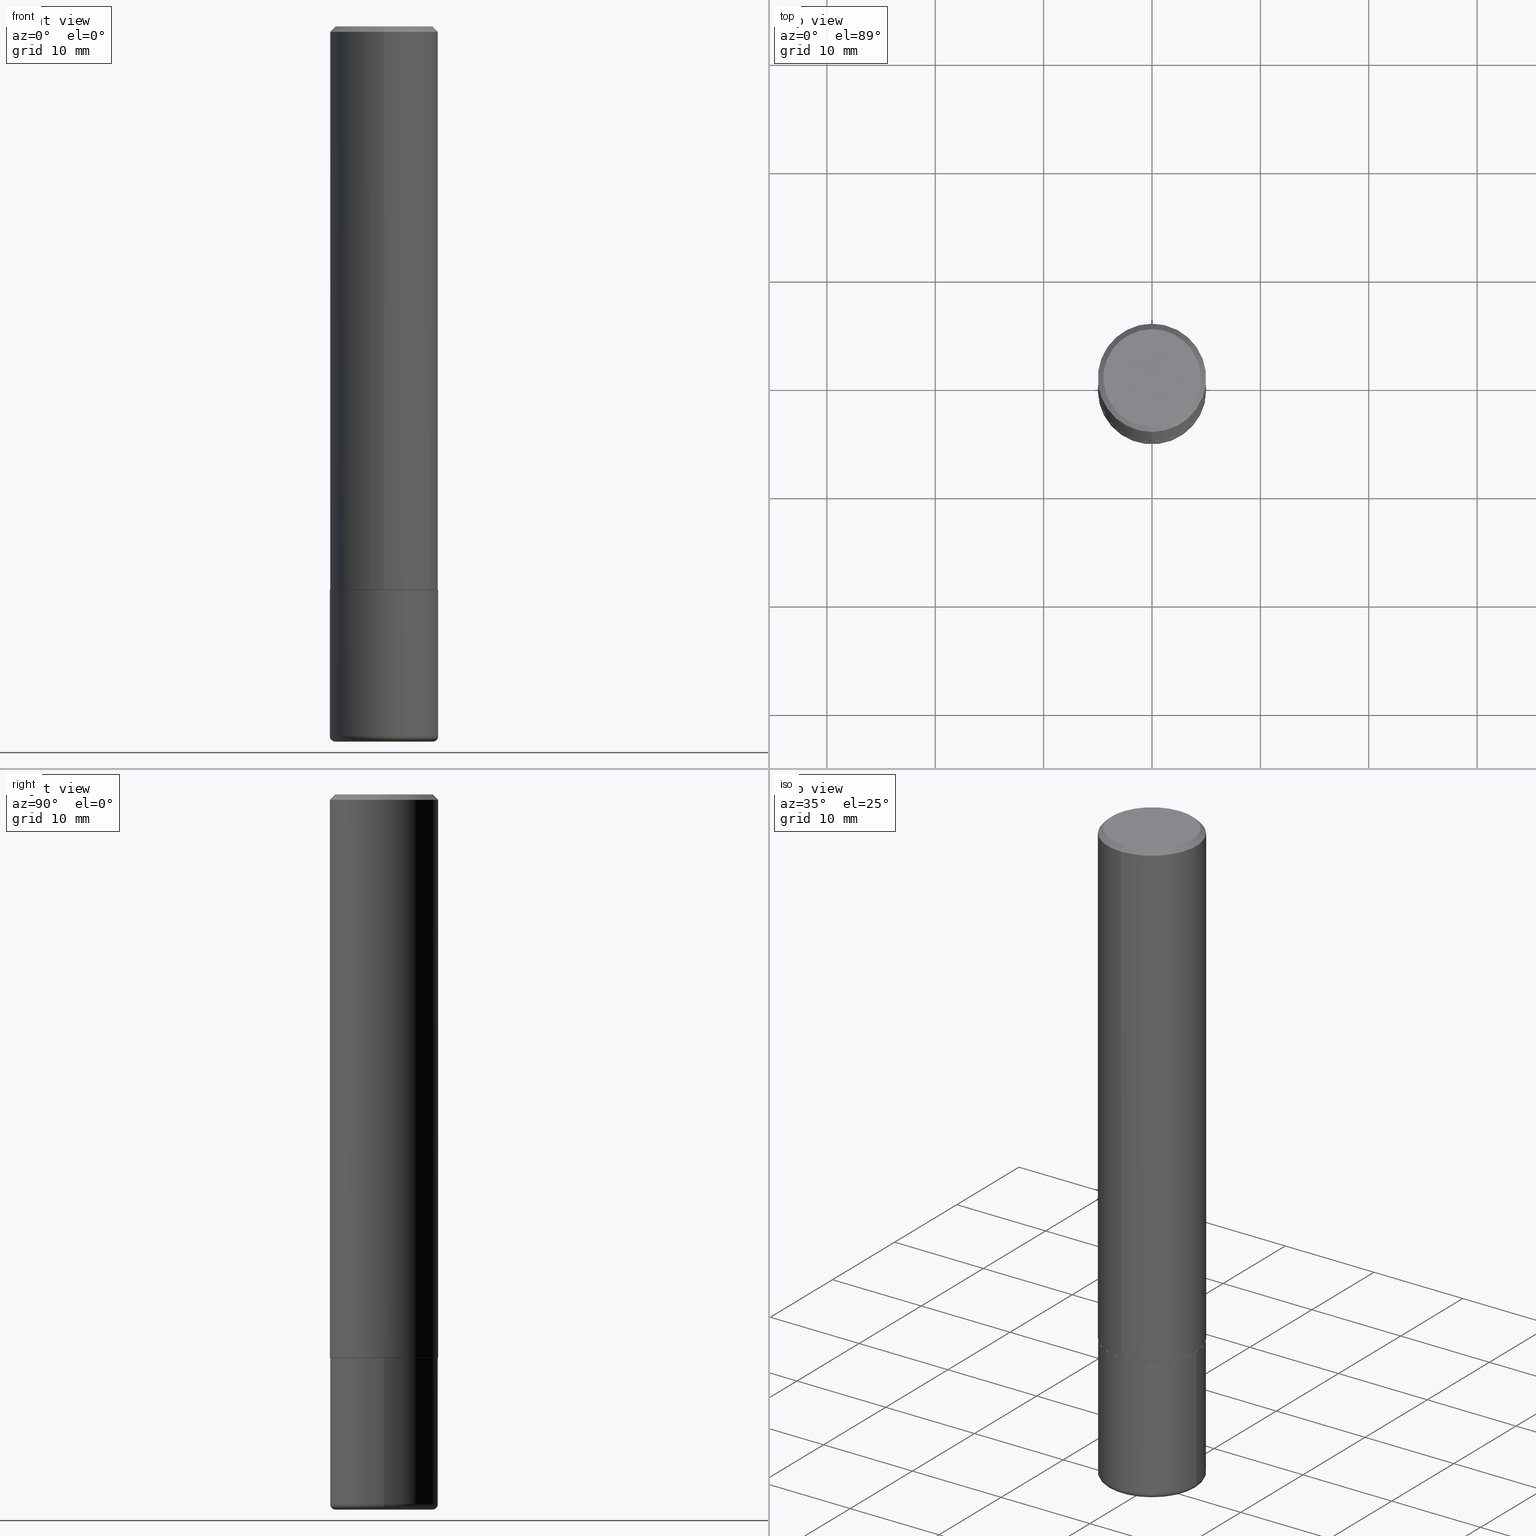
[diagram: canonical four-view strip — front | top / right | iso, engineering-drawing reading convention]
A machine part, canonical four-view strip (front | top / right | iso — engineering-drawing reading convention). The complete STEP part file that produces these views, byte-faithful:
ISO-10303-21;
HEADER;
FILE_DESCRIPTION (( 'STEP AP203' ),
    '1' );
FILE_NAME ('42714.STEP',
    '2024-03-04T03:27:57',
    ( '' ),
    ( '' ),
    'SwSTEP 2.0',
    'SolidWorks 2023',
    '' );
FILE_SCHEMA (( 'CONFIG_CONTROL_DESIGN' ));
ENDSEC;

DATA;
#1 = CIRCLE ( 'NONE', #151, 0.1768499999999999239 ) ;
#2 = EDGE_CURVE ( 'NONE', #179, #27, #392, .T. ) ;
#3 = ADVANCED_FACE ( 'NONE', ( #62 ), #130, .F. ) ;
#4 = LINE ( 'NONE', #164, #75 ) ;
#5 = DIRECTION ( 'NONE',  ( -2.446014387336122996E-29, 3.490700035582381786E-15, 1.000000000000000000 ) ) ;
#6 = CARTESIAN_POINT ( 'NONE',  ( 0.000000000000000000, 0.000000000000000000, 0.000000000000000000 ) ) ;
#7 = CARTESIAN_POINT ( 'NONE',  ( 6.306130410509613019E-29, -9.003482928474821437E-15, -2.578700000000000436 ) ) ;
#8 = ORIENTED_EDGE ( 'NONE', *, *, #223, .F. ) ;
#9 = DATE_AND_TIME ( #342, #266 ) ;
#10 = DIRECTION ( 'NONE',  ( -2.445468806185136597E-29, 3.491481338843145583E-15, 1.000000000000000000 ) ) ;
#11 = CARTESIAN_POINT ( 'NONE',  ( 0.1968499999999999417, -1.037807913157736305E-14, -2.578700000000000436 ) ) ;
#12 = DIRECTION ( 'NONE',  ( 0.000000000000000000, 0.000000000000000000, 1.000000000000000000 ) ) ;
#13 = SECURITY_CLASSIFICATION_LEVEL ( 'unclassified' ) ;
#14 = CYLINDRICAL_SURFACE ( 'NONE', #321, 0.1968499999999999694 ) ;
#15 = TOROIDAL_SURFACE ( 'NONE', #407, 0.1771500000000000019, 0.01969999999999987733 ) ;
#16 = DIRECTION ( 'NONE',  ( 6.982962677686265922E-15, 1.000000000000000000, -3.490700035582381786E-15 ) ) ;
#17 = CARTESIAN_POINT ( 'NONE',  ( 5.007480653754512257E-29, -7.146161112844253713E-15, -2.047200000000000131 ) ) ;
#18 = ORIENTED_EDGE ( 'NONE', *, *, #336, .F. ) ;
#19 = FACE_OUTER_BOUND ( 'NONE', #94, .T. ) ;
#20 = EDGE_CURVE ( 'NONE', #96, #416, #57, .T. ) ;
#21 = APPLICATION_CONTEXT ( 'configuration controlled 3d designs of mechanical parts and assemblies' ) ;
#22 = LOCAL_TIME ( 22, 27, 57.00000000000000000, #381 ) ;
#23 = VERTEX_POINT ( 'NONE', #310 ) ;
#24 = CARTESIAN_POINT ( 'NONE',  ( 6.306130410509613019E-29, -9.003482928474821437E-15, -2.578700000000000436 ) ) ;
#25 = CARTESIAN_POINT ( 'NONE',  ( 0.000000000000000000, 0.000000000000000000, 0.000000000000000000 ) ) ;
#26 = DIRECTION ( 'NONE',  ( 2.438088387897960049E-29, -3.491481338843145188E-15, -1.000000000000000000 ) ) ;
#27 = VERTEX_POINT ( 'NONE', #276 ) ;
#28 = DIRECTION ( 'NONE',  ( 4.937700262164541731E-15, 0.7071067811865442421, -0.7071067811865507924 ) ) ;
#29 = ORIENTED_EDGE ( 'NONE', *, *, #54, .T. ) ;
#30 = VERTEX_POINT ( 'NONE', #368 ) ;
#31 = CONICAL_SURFACE ( 'NONE', #189, 0.1968500000000000250, 0.7853981633974471688 ) ;
#32 = VECTOR ( 'NONE', #183, 39.37007874015748143 ) ;
#33 = CARTESIAN_POINT ( 'NONE',  ( -1.367613240424805107E-15, -0.1958500000000071573, -2.047199999999999243 ) ) ;
#34 = ORIENTED_EDGE ( 'NONE', *, *, #279, .F. ) ;
#35 = PRODUCT_DEFINITION_SHAPE ( 'NONE', 'NONE',  #257 ) ;
#36 = ORIENTED_EDGE ( 'NONE', *, *, #223, .T. ) ;
#37 = ORIENTED_EDGE ( 'NONE', *, *, #2, .T. ) ;
#38 = PERSON_AND_ORGANIZATION ( #135, #46 ) ;
#39 = ORIENTED_EDGE ( 'NONE', *, *, #304, .T. ) ;
#40 = CIRCLE ( 'NONE', #162, 0.01969999999999989468 ) ;
#41 = AXIS2_PLACEMENT_3D ( 'NONE', #6, #12, #93 ) ;
#42 = CC_DESIGN_PERSON_AND_ORGANIZATION_ASSIGNMENT ( #218, #149, ( #257 ) ) ;
#43 = CARTESIAN_POINT ( 'NONE',  ( 4.892028774672256712E-31, -6.981400071164778067E-17, -0.02000000000000004205 ) ) ;
#44 = DIRECTION ( 'NONE',  ( -6.982962677686265922E-15, -1.000000000000000000, 4.163344669033670112E-15 ) ) ;
#45 = APPLICATION_PROTOCOL_DEFINITION ( 'international standard', 'config_control_design', 1994, #52 ) ;
#46 = ORGANIZATION ( 'UNSPECIFIED', 'UNSPECIFIED', '' ) ;
#47 = VERTEX_POINT ( 'NONE', #175 ) ;
#48 = EDGE_LOOP ( 'NONE', ( #114, #37 ) ) ;
#49 = CLOSED_SHELL ( 'NONE', ( #200, #355, #352, #255, #210, #73 ) ) ;
#50 = AXIS2_PLACEMENT_3D ( 'NONE', #387, #97, #361 ) ;
#51 = FACE_OUTER_BOUND ( 'NONE', #48, .T. ) ;
#52 = APPLICATION_CONTEXT ( 'configuration controlled 3d designs of mechanical parts and assemblies' ) ;
#53 = EDGE_CURVE ( 'NONE', #115, #253, #280, .T. ) ;
#54 = EDGE_CURVE ( 'NONE', #416, #30, #265, .T. ) ;
#55 = APPROVAL ( #103, 'UNSPECIFIED' ) ;
#56 = DIRECTION ( 'NONE',  ( -1.000000000000000000, 6.982962677686265922E-15, -4.876176775795935793E-29 ) ) ;
#57 = CIRCLE ( 'NONE', #240, 0.01969999999999989468 ) ;
#58 = AXIS2_PLACEMENT_3D ( 'NONE', #345, #187, #16 ) ;
#59 = CC_DESIGN_APPROVAL ( #55, ( #163 ) ) ;
#60 = DIRECTION ( 'NONE',  ( -2.445468806185136597E-29, 3.491481338843145583E-15, 1.000000000000000000 ) ) ;
#61 = EDGE_LOOP ( 'NONE', ( #378, #360, #127, #247 ) ) ;
#62 = FACE_OUTER_BOUND ( 'NONE', #408, .T. ) ;
#63 = CARTESIAN_POINT ( 'NONE',  ( 1.374596203102542003E-15, 0.1968499999999999417, -0.02000000000000072900 ) ) ;
#64 = ORIENTED_EDGE ( 'NONE', *, *, #336, .T. ) ;
#65 = EDGE_CURVE ( 'NONE', #314, #217, #379, .T. ) ;
#66 = CARTESIAN_POINT ( 'NONE',  ( -2.502422567953256379E-45, 3.571199986484879937E-31, 1.023061262807437951E-16 ) ) ;
#67 = APPLICATION_PROTOCOL_DEFINITION ( 'international standard', 'config_control_design', 1994, #21 ) ;
#68 = ORIENTED_EDGE ( 'NONE', *, *, #72, .F. ) ;
#69 = VECTOR ( 'NONE', #414, 39.37007874015748143 ) ;
#70 = VECTOR ( 'NONE', #155, 39.37007874015748143 ) ;
#71 = ORIENTED_EDGE ( 'NONE', *, *, #53, .T. ) ;
#72 = EDGE_CURVE ( 'NONE', #217, #299, #100, .T. ) ;
#73 = ADVANCED_FACE ( 'NONE', ( #354 ), #225, .T. ) ;
#74 = DIRECTION ( 'NONE',  ( -2.446014387336123276E-29, 3.490700035582381786E-15, 1.000000000000000000 ) ) ;
#75 = VECTOR ( 'NONE', #331, 39.37007874015748143 ) ;
#76 = EDGE_CURVE ( 'NONE', #30, #179, #353, .T. ) ;
#77 = AXIS2_PLACEMENT_3D ( 'NONE', #248, #128, #395 ) ;
#78 = PERSON_AND_ORGANIZATION ( #135, #46 ) ;
#79 = ADVANCED_FACE ( 'NONE', ( #19 ), #31, .T. ) ;
#80 = DIRECTION ( 'NONE',  ( -6.982962677686265922E-15, -1.000000000000000000, 4.184602492209747448E-15 ) ) ;
#81 = DIRECTION ( 'NONE',  ( -2.446014387336123276E-29, 3.490700035582381786E-15, 1.000000000000000000 ) ) ;
#82 = LOCAL_TIME ( 22, 27, 57.00000000000000000, #312 ) ;
#83 = DATE_AND_TIME ( #134, #343 ) ;
#84 = APPROVAL ( #258, 'UNSPECIFIED' ) ;
#85 = CARTESIAN_POINT ( 'NONE',  ( -0.1968499999999999694, 1.398703375343756999E-15, -9.682923725166782276E-30 ) ) ;
#86 = DATE_AND_TIME ( #287, #22 ) ;
#87 = AXIS2_PLACEMENT_3D ( 'NONE', #320, #26, #56 ) ;
#88 = LINE ( 'NONE', #348, #70 ) ;
#89 = COORDINATED_UNIVERSAL_TIME_OFFSET ( 5, 0, .BEHIND. ) ;
#90 = EDGE_CURVE ( 'NONE', #388, #253, #271, .T. ) ;
#91 = DIRECTION ( 'NONE',  ( -4.851104656540957964E-15, -0.7071067811865491270, -0.7071067811865459074 ) ) ;
#92 = ORIENTED_EDGE ( 'NONE', *, *, #195, .F. ) ;
#93 = DIRECTION ( 'NONE',  ( 1.000000000000000000, 0.000000000000000000, 0.000000000000000000 ) ) ;
#94 = EDGE_LOOP ( 'NONE', ( #231, #333, #308, #168 ) ) ;
#95 = CC_DESIGN_SECURITY_CLASSIFICATION ( #272, ( #163 ) ) ;
#96 = VERTEX_POINT ( 'NONE', #192 ) ;
#97 = DIRECTION ( 'NONE',  ( -2.445468806185136597E-29, 3.491481338843145583E-15, 1.000000000000000000 ) ) ;
#98 = APPROVAL_ROLE ( '' ) ;
#99 = ORIENTED_EDGE ( 'NONE', *, *, #304, .F. ) ;
#100 = CIRCLE ( 'NONE', #412, 0.1968500000000000250 ) ;
#101 = ORIENTED_EDGE ( 'NONE', *, *, #325, .F. ) ;
#102 = EDGE_CURVE ( 'NONE', #416, #27, #4, .T. ) ;
#103 = APPROVAL_STATUS ( 'not_yet_approved' ) ;
#104 = CARTESIAN_POINT ( 'NONE',  ( 0.1771500000000000019, -1.024051476682694383E-14, -2.578700000000000436 ) ) ;
#105 = DIRECTION ( 'NONE',  ( -6.982962677686265922E-15, -1.000000000000000000, 3.490700035582381786E-15 ) ) ;
#106 = AXIS2_PLACEMENT_3D ( 'NONE', #216, #157, #415 ) ;
#107 = ORIENTED_EDGE ( 'NONE', *, *, #76, .F. ) ;
#108 = CYLINDRICAL_SURFACE ( 'NONE', #214, 0.1968499999999999694 ) ;
#109 = DATE_AND_TIME ( #180, #82 ) ;
#110 = ORIENTED_EDGE ( 'NONE', *, *, #290, .T. ) ;
#111 = DIRECTION ( 'NONE',  ( 2.446014387336123276E-29, -3.490700035582381786E-15, -1.000000000000000000 ) ) ;
#112 = ORIENTED_EDGE ( 'NONE', *, *, #226, .F. ) ;
#113 = ORIENTED_EDGE ( 'NONE', *, *, #102, .F. ) ;
#114 = ORIENTED_EDGE ( 'NONE', *, *, #148, .T. ) ;
#115 = VERTEX_POINT ( 'NONE', #33 ) ;
#116 = DESIGN_CONTEXT ( 'detailed design', #21, 'design' ) ;
#117 = CARTESIAN_POINT ( 'NONE',  ( -1.350489030861325429E-15, -0.1968500000000000805, -0.01999999999999935510 ) ) ;
#118 = DIRECTION ( 'NONE',  ( 6.982962677686265133E-15, 1.000000000000000000, -3.491137977679279424E-15 ) ) ;
#119 = PERSON_AND_ORGANIZATION_ROLE ( 'design_owner' ) ;
#120 = CARTESIAN_POINT ( 'NONE',  ( -1.350489030861325429E-15, -0.1968500000000000805, -0.01999999999999935510 ) ) ;
#121 = PLANE ( 'NONE',  #184 ) ;
#122 = EDGE_LOOP ( 'NONE', ( #92, #34 ) ) ;
#123 = AXIS2_PLACEMENT_3D ( 'NONE', #293, #10, #300 ) ;
#124 = CARTESIAN_POINT ( 'NONE',  ( 1.374596203102542003E-15, 0.1968499999999999417, -0.02000000000000072900 ) ) ;
#125 = ORIENTED_EDGE ( 'NONE', *, *, #90, .T. ) ;
#126 = FACE_OUTER_BOUND ( 'NONE', #292, .T. ) ;
#127 = ORIENTED_EDGE ( 'NONE', *, *, #185, .F. ) ;
#128 = DIRECTION ( 'NONE',  ( -2.446014387336123276E-29, 3.490700035582381786E-15, 1.000000000000000000 ) ) ;
#129 = ADVANCED_FACE ( 'NONE', ( #126 ), #269, .T. ) ;
#130 = PLANE ( 'NONE',  #138 ) ;
#131 = CIRCLE ( 'NONE', #123, 0.1968499999999999694 ) ;
#132 = PERSON_AND_ORGANIZATION_ROLE ( 'classification_officer' ) ;
#133 = DIRECTION ( 'NONE',  ( -2.445468806185136597E-29, 3.491481338843145583E-15, 1.000000000000000000 ) ) ;
#134 = CALENDAR_DATE ( 2024, 3, 3 ) ;
#135 = PERSON ( 'UNSPECIFIED', 'UNSPECIFIED', 'UNSPECIFIED', ('UNSPECIFIED'), ('UNSPECIFIED'), ('UNSPECIFIED') ) ;
#136 = LENGTH_MEASURE_WITH_UNIT ( LENGTH_MEASURE( 0.02539999999999999897 ), #235 );
#137 = EDGE_CURVE ( 'NONE', #256, #115, #418, .T. ) ;
#138 = AXIS2_PLACEMENT_3D ( 'NONE', #190, #5, #375 ) ;
#139 = PERSON_AND_ORGANIZATION ( #135, #46 ) ;
#140 = CARTESIAN_POINT ( 'NONE',  ( 6.354306145991459756E-29, -9.072265110850031044E-15, -2.598400000000000265 ) ) ;
#141 = TOROIDAL_SURFACE ( 'NONE', #50, 0.1771500000000000019, 0.01969999999999987733 ) ;
#142 = DIRECTION ( 'NONE',  ( 2.438088387897960049E-29, -3.491481338843145188E-15, -1.000000000000000000 ) ) ;
#143 = FACE_OUTER_BOUND ( 'NONE', #61, .T. ) ;
#144 = DIRECTION ( 'NONE',  ( 1.000000000000000000, -6.982962677686266711E-15, 4.876176775795935793E-29 ) ) ;
#145 = CYLINDRICAL_SURFACE ( 'NONE', #106, 0.1968500000000001082 ) ;
#146 = ORIENTED_EDGE ( 'NONE', *, *, #185, .T. ) ;
#147 = DIRECTION ( 'NONE',  ( -2.446014387336123276E-29, 3.490700035582381786E-15, 1.000000000000000000 ) ) ;
#148 = EDGE_CURVE ( 'NONE', #27, #179, #377, .T. ) ;
#149 = PERSON_AND_ORGANIZATION_ROLE ( 'creator' ) ;
#150 = DIRECTION ( 'NONE',  ( 2.446014387336123276E-29, -3.490700035582381786E-15, -1.000000000000000000 ) ) ;
#151 = AXIS2_PLACEMENT_3D ( 'NONE', #224, #384, #372 ) ;
#152 = FACE_OUTER_BOUND ( 'NONE', #322, .T. ) ;
#153 = APPROVAL_ROLE ( '' ) ;
#154 = CARTESIAN_POINT ( 'NONE',  ( 4.892028774672256712E-31, -6.981400071164778067E-17, -0.02000000000000004205 ) ) ;
#155 = DIRECTION ( 'NONE',  ( -2.446014387336123276E-29, 3.490700035582381786E-15, 1.000000000000000000 ) ) ;
#156 = CARTESIAN_POINT ( 'NONE',  ( 1.395150661665007179E-15, 0.1958499999999928631, -2.047200000000001019 ) ) ;
#157 = DIRECTION ( 'NONE',  ( -2.446014387336123276E-29, 3.490700035582381786E-15, 1.000000000000000000 ) ) ;
#158 = EDGE_LOOP ( 'NONE', ( #112, #219, #71, #230 ) ) ;
#159 = FACE_OUTER_BOUND ( 'NONE', #373, .T. ) ;
#160 = EDGE_LOOP ( 'NONE', ( #29, #329, #347, #113 ) ) ;
#161 = ADVANCED_BREP_SHAPE_REPRESENTATION ( '42714', ( #396, #264, #41 ), #356 ) ;
#162 = AXIS2_PLACEMENT_3D ( 'NONE', #371, #311, #242 ) ;
#163 = PRODUCT_DEFINITION_FORMATION_WITH_SPECIFIED_SOURCE ( 'ANY', '', #262, .NOT_KNOWN. ) ;
#164 = CARTESIAN_POINT ( 'NONE',  ( 0.1968499999999999694, -1.374596203102541411E-15, 9.598753983154298056E-30 ) ) ;
#165 = ORIENTED_EDGE ( 'NONE', *, *, #102, .T. ) ;
#166 = ADVANCED_FACE ( 'NONE', ( #340 ), #349, .T. ) ;
#167 = EDGE_CURVE ( 'NONE', #23, #30, #40, .T. ) ;
#168 = ORIENTED_EDGE ( 'NONE', *, *, #359, .T. ) ;
#169 = CARTESIAN_POINT ( 'NONE',  ( 0.000000000000000000, 0.000000000000000000, 0.000000000000000000 ) ) ;
#170 = VECTOR ( 'NONE', #91, 39.37007874015748143 ) ;
#171 = CIRCLE ( 'NONE', #77, 0.1958499999999999963 ) ;
#172 = DIRECTION ( 'NONE',  ( 1.000000000000000000, -6.982962677686272233E-15, 0.000000000000000000 ) ) ;
#173 = DIRECTION ( 'NONE',  ( 1.000000000000000000, -6.982962677686266711E-15, 0.000000000000000000 ) ) ;
#174 = CC_DESIGN_PERSON_AND_ORGANIZATION_ASSIGNMENT ( #38, #399, ( #163 ) ) ;
#175 = CARTESIAN_POINT ( 'NONE',  ( 1.304766576325678705E-15, 0.1768499999999999239, -5.150241750120001251E-16 ) ) ;
#176 = FACE_OUTER_BOUND ( 'NONE', #160, .T. ) ;
#177 = CONICAL_SURFACE ( 'NONE', #338, 0.1958499999999999963, 0.7853981633975336552 ) ;
#178 = DIRECTION ( 'NONE',  ( -2.445468806185136597E-29, 3.491481338843145583E-15, 1.000000000000000000 ) ) ;
#179 = VERTEX_POINT ( 'NONE', #208 ) ;
#180 = CALENDAR_DATE ( 2024, 3, 3 ) ;
#181 = DIRECTION ( 'NONE',  ( 1.000000000000000000, -6.982962677686269866E-15, 0.000000000000000000 ) ) ;
#182 = ORIENTED_EDGE ( 'NONE', *, *, #263, .F. ) ;
#183 = DIRECTION ( 'NONE',  ( 5.024295867788490741E-15, 0.7071067811866103003, 0.7071067811864847341 ) ) ;
#184 = AXIS2_PLACEMENT_3D ( 'NONE', #393, #142, #404 ) ;
#185 = EDGE_CURVE ( 'NONE', #253, #388, #315, .T. ) ;
#186 = UNCERTAINTY_MEASURE_WITH_UNIT (LENGTH_MEASURE( 1.000000000000000082E-05 ), #367, 'distance_accuracy_value', 'NONE');
#187 = DIRECTION ( 'NONE',  ( 2.446014387336122996E-29, -3.490700035582381786E-15, -1.000000000000000000 ) ) ;
#188 = CARTESIAN_POINT ( 'NONE',  ( 5.005034639367176038E-29, -7.142670412808670312E-15, -2.046200000000000241 ) ) ;
#189 = AXIS2_PLACEMENT_3D ( 'NONE', #380, #150, #118 ) ;
#190 = CARTESIAN_POINT ( 'NONE',  ( 5.007480653754512257E-29, -7.146161112844253713E-15, -2.047200000000000131 ) ) ;
#191 = FACE_OUTER_BOUND ( 'NONE', #344, .T. ) ;
#192 = CARTESIAN_POINT ( 'NONE',  ( 0.1771500000000000019, -1.030929694920215502E-14, -2.598400000000000265 ) ) ;
#193 = DIRECTION ( 'NONE',  ( -2.446014387336123276E-29, 3.490700035582381786E-15, 1.000000000000000000 ) ) ;
#194 = ORIENTED_EDGE ( 'NONE', *, *, #167, .F. ) ;
#195 = EDGE_CURVE ( 'NONE', #96, #23, #196, .T. ) ;
#196 = CIRCLE ( 'NONE', #362, 0.1771500000000000019 ) ;
#197 = AXIS2_PLACEMENT_3D ( 'NONE', #202, #390, #172 ) ;
#198 = CARTESIAN_POINT ( 'NONE',  ( -1.281884050883609900E-15, -0.1768499999999999239, 7.196364275734877646E-16 ) ) ;
#199 = ORIENTED_EDGE ( 'NONE', *, *, #359, .F. ) ;
#200 = ADVANCED_FACE ( 'NONE', ( #176 ), #108, .T. ) ;
#201 = DIRECTION ( 'NONE',  ( -6.982962677686265922E-15, -1.000000000000000000, 4.184602492209747448E-15 ) ) ;
#202 = CARTESIAN_POINT ( 'NONE',  ( 6.354306145991459756E-29, -9.072265110850031044E-15, -2.598400000000000265 ) ) ;
#203 = DIRECTION ( 'NONE',  ( -6.982962677686266711E-15, -1.000000000000000000, 3.491481338843145583E-15 ) ) ;
#204 = CLOSED_SHELL ( 'NONE', ( #402, #129, #166, #79, #211, #366, #3, #337 ) ) ;
#205 = DIRECTION ( 'NONE',  ( 1.000000000000000000, -6.982962677686267499E-15, 0.000000000000000000 ) ) ;
#206 = EDGE_CURVE ( 'NONE', #47, #299, #267, .T. ) ;
#207 = DIRECTION ( 'NONE',  ( -6.982962677686265922E-15, -1.000000000000000000, 4.184602492209747448E-15 ) ) ;
#208 = CARTESIAN_POINT ( 'NONE',  ( -0.1968500000000000250, -6.676918387333497821E-15, -2.047200000000000131 ) ) ;
#209 = DIRECTION ( 'NONE',  ( -2.445468806185136597E-29, 3.491481338843145583E-15, 1.000000000000000000 ) ) ;
#210 = ADVANCED_FACE ( 'NONE', ( #159 ), #141, .T. ) ;
#211 = ADVANCED_FACE ( 'NONE', ( #295 ), #145, .T. ) ;
#212 = AXIS2_PLACEMENT_3D ( 'NONE', #188, #405, #285 ) ;
#213 = ORIENTED_EDGE ( 'NONE', *, *, #279, .T. ) ;
#214 = AXIS2_PLACEMENT_3D ( 'NONE', #169, #209, #144 ) ;
#215 = FACE_OUTER_BOUND ( 'NONE', #158, .T. ) ;
#216 = CARTESIAN_POINT ( 'NONE',  ( 0.000000000000000000, 0.000000000000000000, 0.000000000000000000 ) ) ;
#217 = VERTEX_POINT ( 'NONE', #120 ) ;
#218 = PERSON_AND_ORGANIZATION ( #135, #46 ) ;
#219 = ORIENTED_EDGE ( 'NONE', *, *, #137, .T. ) ;
#220 = AXIS2_PLACEMENT_3D ( 'NONE', #374, #81, #44 ) ;
#221 = DATE_TIME_ROLE ( 'creation_date' ) ;
#222 = CIRCLE ( 'NONE', #328, 0.1768499999999999239 ) ;
#223 = EDGE_CURVE ( 'NONE', #253, #217, #88, .T. ) ;
#224 = CARTESIAN_POINT ( 'NONE',  ( -2.502422567953256379E-45, 3.571199986484879937E-31, 1.023061262807437951E-16 ) ) ;
#225 = PLANE ( 'NONE',  #87 ) ;
#226 = EDGE_CURVE ( 'NONE', #256, #388, #227, .T. ) ;
#227 = LINE ( 'NONE', #358, #32 ) ;
#228 = AXIS2_PLACEMENT_3D ( 'NONE', #397, #277, #201 ) ;
#229 = CIRCLE ( 'NONE', #241, 0.1968500000000000250 ) ;
#230 = ORIENTED_EDGE ( 'NONE', *, *, #90, .F. ) ;
#231 = ORIENTED_EDGE ( 'NONE', *, *, #65, .F. ) ;
#232 = CC_DESIGN_PERSON_AND_ORGANIZATION_ASSIGNMENT ( #139, #132, ( #272 ) ) ;
#233 = ORIENTED_EDGE ( 'NONE', *, *, #65, .T. ) ;
#234 = COORDINATED_UNIVERSAL_TIME_OFFSET ( 5, 0, .BEHIND. ) ;
#235 =( LENGTH_UNIT ( ) NAMED_UNIT ( * ) SI_UNIT ( $, .METRE. ) );
#236 = APPROVAL ( #391, 'UNSPECIFIED' ) ;
#237 = DIRECTION ( 'NONE',  ( -2.446014387336123276E-29, 3.490700035582381786E-15, 1.000000000000000000 ) ) ;
#238 = DIRECTION ( 'NONE',  ( -6.982962677686265922E-15, -1.000000000000000000, 3.490700035582381391E-15 ) ) ;
#239 = DIRECTION ( 'NONE',  ( 1.000000000000000000, -6.982962677686261977E-15, 4.883557194083110659E-29 ) ) ;
#240 = AXIS2_PLACEMENT_3D ( 'NONE', #104, #203, #173 ) ;
#241 = AXIS2_PLACEMENT_3D ( 'NONE', #245, #376, #249 ) ;
#242 = DIRECTION ( 'NONE',  ( -1.000000000000000000, 7.105427357601014480E-15, 0.000000000000000000 ) ) ;
#243 = MECHANICAL_CONTEXT ( 'NONE', #52, 'mechanical' ) ;
#244 = PLANE ( 'NONE',  #58 ) ;
#245 = CARTESIAN_POINT ( 'NONE',  ( 4.892028774672256712E-31, -6.981400071164778067E-17, -0.02000000000000004205 ) ) ;
#246 = PERSON_AND_ORGANIZATION ( #135, #46 ) ;
#247 = ORIENTED_EDGE ( 'NONE', *, *, #53, .F. ) ;
#248 = CARTESIAN_POINT ( 'NONE',  ( 5.007480653754512257E-29, -7.146161112844253713E-15, -2.047200000000000131 ) ) ;
#249 = DIRECTION ( 'NONE',  ( -6.982962677686265133E-15, -1.000000000000000000, 3.491137977679279424E-15 ) ) ;
#250 = AXIS2_PLACEMENT_3D ( 'NONE', #389, #237, #105 ) ;
#251 = CC_DESIGN_APPROVAL ( #84, ( #272 ) ) ;
#252 = APPROVAL_PERSON_ORGANIZATION ( #78, #55, #309 ) ;
#253 = VERTEX_POINT ( 'NONE', #410 ) ;
#254 = DIRECTION ( 'NONE',  ( -2.445468806185136597E-29, 3.491481338843145583E-15, 1.000000000000000000 ) ) ;
#255 = ADVANCED_FACE ( 'NONE', ( #370 ), #14, .T. ) ;
#256 = VERTEX_POINT ( 'NONE', #156 ) ;
#257 = PRODUCT_DEFINITION ( 'UNKNOWN', '', #163, #116 ) ;
#258 = APPROVAL_STATUS ( 'not_yet_approved' ) ;
#259 = APPROVAL_PERSON_ORGANIZATION ( #270, #236, #98 ) ;
#260 = DIRECTION ( 'NONE',  ( 1.000000000000000000, -6.982962677686266711E-15, 4.876176775795935793E-29 ) ) ;
#261 = PRODUCT_RELATED_PRODUCT_CATEGORY ( 'detail', '', ( #262 ) ) ;
#262 = PRODUCT ( '42714', '42714', '', ( #243 ) ) ;
#263 = EDGE_CURVE ( 'NONE', #30, #416, #131, .T. ) ;
#264 = MANIFOLD_SOLID_BREP ( 'Body-Move/Copy2[2]', #204 ) ;
#265 = CIRCLE ( 'NONE', #406, 0.1968499999999999694 ) ;
#266 = LOCAL_TIME ( 22, 27, 57.00000000000000000, #234 ) ;
#267 = LINE ( 'NONE', #63, #413 ) ;
#268 = LINE ( 'NONE', #363, #369 ) ;
#269 = CYLINDRICAL_SURFACE ( 'NONE', #250, 0.1968500000000001082 ) ;
#270 = PERSON_AND_ORGANIZATION ( #135, #46 ) ;
#271 = CIRCLE ( 'NONE', #212, 0.1968500000000002470 ) ;
#272 = SECURITY_CLASSIFICATION ( '', '', #13 ) ;
#273 = EDGE_LOOP ( 'NONE', ( #99, #125, #36, #199 ) ) ;
#274 = CC_DESIGN_PERSON_AND_ORGANIZATION_ASSIGNMENT ( #326, #119, ( #262 ) ) ;
#275 = DIRECTION ( 'NONE',  ( -2.446014387336123276E-29, 3.490700035582381786E-15, 1.000000000000000000 ) ) ;
#276 = CARTESIAN_POINT ( 'NONE',  ( 0.1968500000000000250, -8.522356799982231388E-15, -2.047200000000000131 ) ) ;
#277 = DIRECTION ( 'NONE',  ( -2.446014387336123276E-29, 3.490700035582381786E-15, 1.000000000000000000 ) ) ;
#278 = DIRECTION ( 'NONE',  ( -2.445468806185136597E-29, 3.491481338843145583E-15, 1.000000000000000000 ) ) ;
#279 = EDGE_CURVE ( 'NONE', #23, #96, #284, .T. ) ;
#280 = LINE ( 'NONE', #289, #382 ) ;
#281 = CARTESIAN_POINT ( 'NONE',  ( 5.006363740022212241E-29, -7.147760596879688202E-15, -2.047200000000000131 ) ) ;
#282 = ORIENTED_EDGE ( 'NONE', *, *, #20, .F. ) ;
#283 = DIRECTION ( 'NONE',  ( -4.937700262164969294E-15, -0.7071067811866054154, 0.7071067811864896191 ) ) ;
#284 = CIRCLE ( 'NONE', #197, 0.1771500000000000019 ) ;
#285 = DIRECTION ( 'NONE',  ( -6.982962677686265922E-15, -1.000000000000000000, 4.163344669033670112E-15 ) ) ;
#286 = SHAPE_DEFINITION_REPRESENTATION ( #35, #161 ) ;
#287 = CALENDAR_DATE ( 2024, 3, 3 ) ;
#288 = DIRECTION ( 'NONE',  ( -2.446014387336123276E-29, 3.490700035582381786E-15, 1.000000000000000000 ) ) ;
#289 = CARTESIAN_POINT ( 'NONE',  ( -1.367613240424805107E-15, -0.1958500000000071573, -2.047199999999999243 ) ) ;
#290 = EDGE_CURVE ( 'NONE', #47, #314, #222, .T. ) ;
#291 = APPROVAL_PERSON_ORGANIZATION ( #246, #84, #153 ) ;
#292 = EDGE_LOOP ( 'NONE', ( #146, #39, #68, #8 ) ) ;
#293 = CARTESIAN_POINT ( 'NONE',  ( 6.306130410509613019E-29, -9.003482928474821437E-15, -2.578700000000000436 ) ) ;
#294 = DIRECTION ( 'NONE',  ( -2.445468806185136597E-29, 3.491481338843145583E-15, 1.000000000000000000 ) ) ;
#295 = FACE_OUTER_BOUND ( 'NONE', #273, .T. ) ;
#296 = EDGE_LOOP ( 'NONE', ( #18, #233, #394, #319 ) ) ;
#297 = AXIS2_PLACEMENT_3D ( 'NONE', #281, #133, #205 ) ;
#298 = CC_DESIGN_APPROVAL ( #236, ( #257 ) ) ;
#299 = VERTEX_POINT ( 'NONE', #124 ) ;
#300 = DIRECTION ( 'NONE',  ( 1.000000000000000000, -6.982962677686269866E-15, 0.000000000000000000 ) ) ;
#301 = CARTESIAN_POINT ( 'NONE',  ( 5.006363740022212241E-29, -7.147760596879688202E-15, -2.047200000000000131 ) ) ;
#302 = ORIENTED_EDGE ( 'NONE', *, *, #2, .F. ) ;
#303 = PERSON_AND_ORGANIZATION_ROLE ( 'design_supplier' ) ;
#304 = EDGE_CURVE ( 'NONE', #388, #299, #268, .T. ) ;
#305 = ORIENTED_EDGE ( 'NONE', *, *, #195, .T. ) ;
#306 = AXIS2_PLACEMENT_3D ( 'NONE', #43, #111, #400 ) ;
#307 = CONICAL_SURFACE ( 'NONE', #386, 0.1958499999999999963, 0.7853981633975336552 ) ;
#308 = ORIENTED_EDGE ( 'NONE', *, *, #206, .T. ) ;
#309 = APPROVAL_ROLE ( '' ) ;
#310 = CARTESIAN_POINT ( 'NONE',  ( -0.1771500000000000019, -7.709159103791039291E-15, -2.598400000000000265 ) ) ;
#311 = DIRECTION ( 'NONE',  ( 7.105427357601001859E-15, 1.000000000000000000, -3.491481338843145583E-15 ) ) ;
#312 = COORDINATED_UNIVERSAL_TIME_OFFSET ( 5, 0, .BEHIND. ) ;
#313 = APPROVAL_DATE_TIME ( #9, #55 ) ;
#314 = VERTEX_POINT ( 'NONE', #198 ) ;
#315 = CIRCLE ( 'NONE', #220, 0.1968500000000002470 ) ;
#316 = CC_DESIGN_PERSON_AND_ORGANIZATION_ASSIGNMENT ( #317, #303, ( #163 ) ) ;
#317 = PERSON_AND_ORGANIZATION ( #135, #46 ) ;
#318 = CARTESIAN_POINT ( 'NONE',  ( 5.007480653754512257E-29, -7.146161112844253713E-15, -2.047200000000000131 ) ) ;
#319 = ORIENTED_EDGE ( 'NONE', *, *, #206, .F. ) ;
#320 = CARTESIAN_POINT ( 'NONE',  ( 7.581335823864113885E-30, -1.708630273629425597E-14, -2.598400000000000265 ) ) ;
#321 = AXIS2_PLACEMENT_3D ( 'NONE', #25, #60, #260 ) ;
#322 = EDGE_LOOP ( 'NONE', ( #110, #64 ) ) ;
#323 = APPROVAL_DATE_TIME ( #83, #236 ) ;
#324 = APPROVAL_DATE_TIME ( #411, #84 ) ;
#325 = EDGE_CURVE ( 'NONE', #115, #256, #171, .T. ) ;
#326 = PERSON_AND_ORGANIZATION ( #135, #46 ) ;
#327 = DIRECTION ( 'NONE',  ( -6.982962677686265133E-15, -1.000000000000000000, 3.491137977679279424E-15 ) ) ;
#328 = AXIS2_PLACEMENT_3D ( 'NONE', #66, #275, #238 ) ;
#329 = ORIENTED_EDGE ( 'NONE', *, *, #76, .T. ) ;
#330 = ORIENTED_EDGE ( 'NONE', *, *, #137, .F. ) ;
#331 = DIRECTION ( 'NONE',  ( -2.445468806185136877E-29, 3.491481338843145188E-15, 1.000000000000000000 ) ) ;
#332 = EDGE_LOOP ( 'NONE', ( #107, #417, #165, #302 ) ) ;
#333 = ORIENTED_EDGE ( 'NONE', *, *, #290, .F. ) ;
#334 = ORIENTED_EDGE ( 'NONE', *, *, #54, .F. ) ;
#335 = ORIENTED_EDGE ( 'NONE', *, *, #20, .T. ) ;
#336 = EDGE_CURVE ( 'NONE', #314, #47, #1, .T. ) ;
#337 = ADVANCED_FACE ( 'NONE', ( #152 ), #244, .F. ) ;
#338 = AXIS2_PLACEMENT_3D ( 'NONE', #17, #147, #80 ) ;
#339 =( NAMED_UNIT ( * ) SI_UNIT ( $, .STERADIAN. ) SOLID_ANGLE_UNIT ( ) );
#340 = FACE_OUTER_BOUND ( 'NONE', #296, .T. ) ;
#341 = CARTESIAN_POINT ( 'NONE',  ( 1.398703375343783820E-15, 0.1968499999999931416, -2.046200000000001129 ) ) ;
#342 = CALENDAR_DATE ( 2024, 3, 3 ) ;
#343 = LOCAL_TIME ( 22, 27, 57.00000000000000000, #364 ) ;
#344 = EDGE_LOOP ( 'NONE', ( #305, #409, #334, #282 ) ) ;
#345 = CARTESIAN_POINT ( 'NONE',  ( 1.234936949548815604E-15, 0.1768499999999999239, -5.661772381523719610E-16 ) ) ;
#346 = DATE_TIME_ROLE ( 'classification_date' ) ;
#347 = ORIENTED_EDGE ( 'NONE', *, *, #148, .F. ) ;
#348 = CARTESIAN_POINT ( 'NONE',  ( -1.374596203102542200E-15, -0.1968500000000001082, 6.871443020043921939E-16 ) ) ;
#349 = CONICAL_SURFACE ( 'NONE', #306, 0.1968500000000000250, 0.7853981633974471688 ) ;
#350 = LOCAL_TIME ( 22, 27, 57.00000000000000000, #89 ) ;
#351 = CALENDAR_DATE ( 2024, 3, 3 ) ;
#352 = ADVANCED_FACE ( 'NONE', ( #51 ), #121, .F. ) ;
#353 = LINE ( 'NONE', #85, #69 ) ;
#354 = FACE_OUTER_BOUND ( 'NONE', #122, .T. ) ;
#355 = ADVANCED_FACE ( 'NONE', ( #191 ), #15, .T. ) ;
#356 =( GEOMETRIC_REPRESENTATION_CONTEXT ( 3 ) GLOBAL_UNCERTAINTY_ASSIGNED_CONTEXT ( ( #186 ) ) GLOBAL_UNIT_ASSIGNED_CONTEXT ( ( #367, #398, #339 ) ) REPRESENTATION_CONTEXT ( 'NONE', 'WORKASPACE' ) );
#357 = DIMENSIONAL_EXPONENTS ( 1.000000000000000000, 0.000000000000000000, 0.000000000000000000, 0.000000000000000000, 0.000000000000000000, 0.000000000000000000, 0.000000000000000000 ) ;
#358 = CARTESIAN_POINT ( 'NONE',  ( 1.391597947986206083E-15, 0.1958499999999928631, -2.047200000000001019 ) ) ;
#359 = EDGE_CURVE ( 'NONE', #299, #217, #229, .T. ) ;
#360 = ORIENTED_EDGE ( 'NONE', *, *, #226, .T. ) ;
#361 = DIRECTION ( 'NONE',  ( 1.000000000000000000, -6.982962677686261977E-15, 4.883557194083110659E-29 ) ) ;
#362 = AXIS2_PLACEMENT_3D ( 'NONE', #140, #278, #401 ) ;
#363 = CARTESIAN_POINT ( 'NONE',  ( 1.398703375343757788E-15, 0.1968500000000001082, -6.871443020043921939E-16 ) ) ;
#364 = COORDINATED_UNIVERSAL_TIME_OFFSET ( 5, 0, .BEHIND. ) ;
#365 = DIRECTION ( 'NONE',  ( 1.000000000000000000, -6.982962677686267499E-15, 0.000000000000000000 ) ) ;
#366 = ADVANCED_FACE ( 'NONE', ( #215 ), #307, .T. ) ;
#367 =( CONVERSION_BASED_UNIT ( 'INCH', #136 ) LENGTH_UNIT ( ) NAMED_UNIT ( #357 ) );
#368 = CARTESIAN_POINT ( 'NONE',  ( -0.1968499999999999417, -7.604779553131062861E-15, -2.578700000000000436 ) ) ;
#369 = VECTOR ( 'NONE', #193, 39.37007874015748143 ) ;
#370 = FACE_OUTER_BOUND ( 'NONE', #332, .T. ) ;
#371 = CARTESIAN_POINT ( 'NONE',  ( -0.1771500000000000019, -7.744756472075802958E-15, -2.578700000000000436 ) ) ;
#372 = DIRECTION ( 'NONE',  ( -6.982962677686265922E-15, -1.000000000000000000, 3.490700035582381391E-15 ) ) ;
#373 = EDGE_LOOP ( 'NONE', ( #194, #213, #335, #182 ) ) ;
#374 = CARTESIAN_POINT ( 'NONE',  ( 5.005034639367176038E-29, -7.142670412808670312E-15, -2.046200000000000241 ) ) ;
#375 = DIRECTION ( 'NONE',  ( -6.982962677686265922E-15, -1.000000000000000000, 3.490700035582381786E-15 ) ) ;
#376 = DIRECTION ( 'NONE',  ( -2.446014387336123276E-29, 3.490700035582381786E-15, 1.000000000000000000 ) ) ;
#377 = CIRCLE ( 'NONE', #297, 0.1968500000000000250 ) ;
#378 = ORIENTED_EDGE ( 'NONE', *, *, #325, .T. ) ;
#379 = LINE ( 'NONE', #117, #170 ) ;
#380 = CARTESIAN_POINT ( 'NONE',  ( 4.892028774672256712E-31, -6.981400071164778067E-17, -0.02000000000000004205 ) ) ;
#381 = COORDINATED_UNIVERSAL_TIME_OFFSET ( 5, 0, .BEHIND. ) ;
#382 = VECTOR ( 'NONE', #283, 39.37007874015748143 ) ;
#383 = CC_DESIGN_DATE_AND_TIME_ASSIGNMENT ( #86, #221, ( #257 ) ) ;
#384 = DIRECTION ( 'NONE',  ( -2.446014387336123276E-29, 3.490700035582381786E-15, 1.000000000000000000 ) ) ;
#385 = AXIS2_PLACEMENT_3D ( 'NONE', #301, #294, #365 ) ;
#386 = AXIS2_PLACEMENT_3D ( 'NONE', #318, #74, #207 ) ;
#387 = CARTESIAN_POINT ( 'NONE',  ( 6.306130410509613019E-29, -9.003482928474821437E-15, -2.578700000000000436 ) ) ;
#388 = VERTEX_POINT ( 'NONE', #341 ) ;
#389 = CARTESIAN_POINT ( 'NONE',  ( 0.000000000000000000, 0.000000000000000000, 0.000000000000000000 ) ) ;
#390 = DIRECTION ( 'NONE',  ( -2.445468806185136597E-29, 3.491481338843145583E-15, 1.000000000000000000 ) ) ;
#391 = APPROVAL_STATUS ( 'not_yet_approved' ) ;
#392 = CIRCLE ( 'NONE', #385, 0.1968500000000000250 ) ;
#393 = CARTESIAN_POINT ( 'NONE',  ( 5.006363740022212241E-29, -7.147760596879688202E-15, -2.047200000000000131 ) ) ;
#394 = ORIENTED_EDGE ( 'NONE', *, *, #72, .T. ) ;
#395 = DIRECTION ( 'NONE',  ( -6.982962677686265922E-15, -1.000000000000000000, 4.184602492209747448E-15 ) ) ;
#396 = MANIFOLD_SOLID_BREP ( 'Body-Move/Copy2[1]', #49 ) ;
#397 = CARTESIAN_POINT ( 'NONE',  ( 5.007480653754512257E-29, -7.146161112844253713E-15, -2.047200000000000131 ) ) ;
#398 =( NAMED_UNIT ( * ) PLANE_ANGLE_UNIT ( ) SI_UNIT ( $, .RADIAN. ) );
#399 = PERSON_AND_ORGANIZATION_ROLE ( 'creator' ) ;
#400 = DIRECTION ( 'NONE',  ( 6.982962677686265133E-15, 1.000000000000000000, -3.491137977679279424E-15 ) ) ;
#401 = DIRECTION ( 'NONE',  ( 1.000000000000000000, -6.982962677686272233E-15, 0.000000000000000000 ) ) ;
#402 = ADVANCED_FACE ( 'NONE', ( #143 ), #177, .T. ) ;
#403 = CC_DESIGN_DATE_AND_TIME_ASSIGNMENT ( #109, #346, ( #272 ) ) ;
#404 = DIRECTION ( 'NONE',  ( -1.000000000000000000, 6.982962677686265922E-15, -4.876176775795935793E-29 ) ) ;
#405 = DIRECTION ( 'NONE',  ( -2.446014387336123276E-29, 3.490700035582381786E-15, 1.000000000000000000 ) ) ;
#406 = AXIS2_PLACEMENT_3D ( 'NONE', #24, #254, #181 ) ;
#407 = AXIS2_PLACEMENT_3D ( 'NONE', #7, #178, #239 ) ;
#408 = EDGE_LOOP ( 'NONE', ( #101, #330 ) ) ;
#409 = ORIENTED_EDGE ( 'NONE', *, *, #167, .T. ) ;
#410 = CARTESIAN_POINT ( 'NONE',  ( -1.374596203102493093E-15, -0.1968500000000073802, -2.046199999999999353 ) ) ;
#411 = DATE_AND_TIME ( #351, #350 ) ;
#412 = AXIS2_PLACEMENT_3D ( 'NONE', #154, #288, #327 ) ;
#413 = VECTOR ( 'NONE', #28, 39.37007874015748143 ) ;
#414 = DIRECTION ( 'NONE',  ( -2.445468806185136877E-29, 3.491481338843145188E-15, 1.000000000000000000 ) ) ;
#415 = DIRECTION ( 'NONE',  ( -6.982962677686265922E-15, -1.000000000000000000, 3.490700035582381786E-15 ) ) ;
#416 = VERTEX_POINT ( 'NONE', #11 ) ;
#417 = ORIENTED_EDGE ( 'NONE', *, *, #263, .T. ) ;
#418 = CIRCLE ( 'NONE', #228, 0.1958499999999999963 ) ;
ENDSEC;
END-ISO-10303-21;
